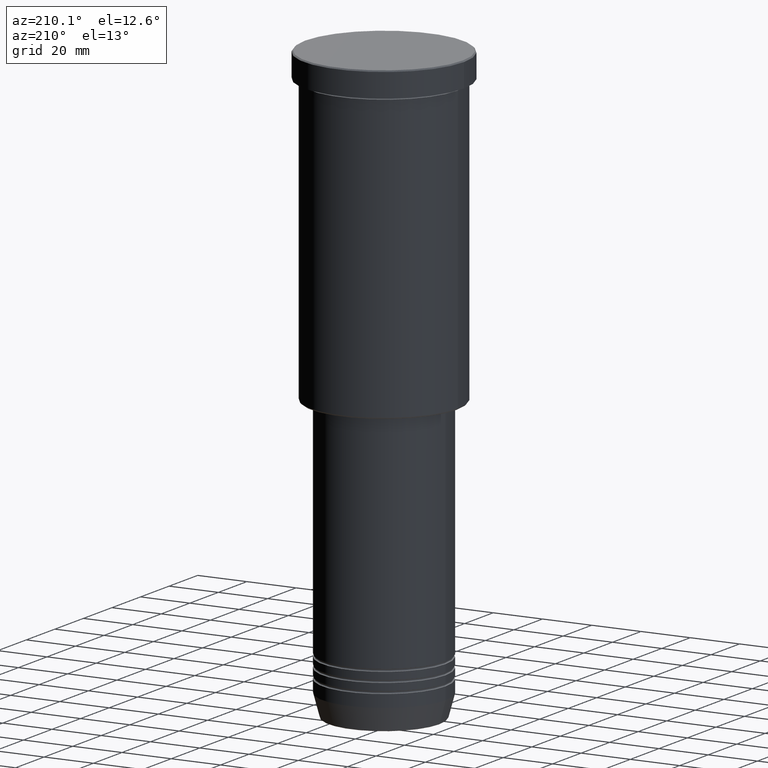
[diagram: clean part render]
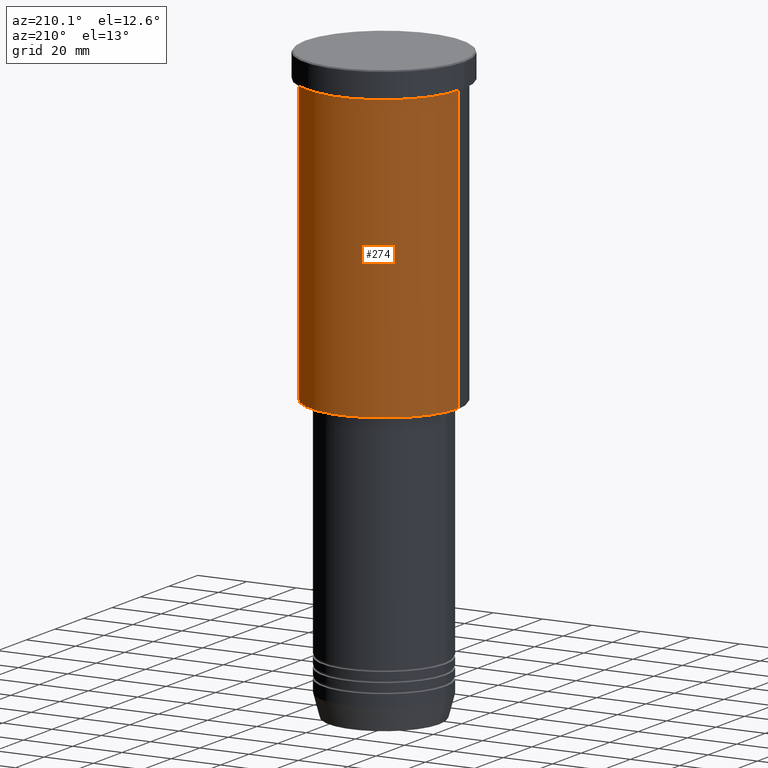
[diagram: same view with one face highlighted and labeled with its STEP entity id]
A machine part, auxiliary view. The second image highlights one B-rep face of the part: STEP entity #274.
In plain terms, the highlighted cylindrical surface (partial cylindrical patch) has radius 30 mm, axis along (-0, -0, 1).
Its self-contained STEP definition (entity closure, byte-faithful):
#2 = VECTOR ( 'NONE', #887, 1000.000000000000000 ) ;
#28 = DIRECTION ( 'NONE',  ( 1.000000000000000000, 0.000000000000000000, 0.000000000000000000 ) ) ;
#40 = CARTESIAN_POINT ( 'NONE',  ( 0.000000000000000000, 0.000000000000000000, -125.4999999999999432 ) ) ;
#55 = AXIS2_PLACEMENT_3D ( 'NONE', #40, #493, #212 ) ;
#95 = CIRCLE ( 'NONE', #55, 30.00000000000000000 ) ;
#96 = VERTEX_POINT ( 'NONE', #977 ) ;
#125 = ORIENTED_EDGE ( 'NONE', *, *, #706, .F. ) ;
#135 = VERTEX_POINT ( 'NONE', #343 ) ;
#150 = ORIENTED_EDGE ( 'NONE', *, *, #1022, .F. ) ;
#161 = AXIS2_PLACEMENT_3D ( 'NONE', #1153, #879, #753 ) ;
#162 = CARTESIAN_POINT ( 'NONE',  ( 30.00000000000000000, 0.000000000000000000, 0.000000000000000000 ) ) ;
#167 = DIRECTION ( 'NONE',  ( -0.000000000000000000, -0.000000000000000000, 1.000000000000000000 ) ) ;
#212 = DIRECTION ( 'NONE',  ( -1.000000000000000000, 0.000000000000000000, 0.000000000000000000 ) ) ;
#274 = ADVANCED_FACE ( 'NONE', ( #294 ), #297, .T. ) ;
#294 = FACE_OUTER_BOUND ( 'NONE', #570, .T. ) ;
#297 = CYLINDRICAL_SURFACE ( 'NONE', #932, 30.00000000000000000 ) ;
#321 = ORIENTED_EDGE ( 'NONE', *, *, #1095, .T. ) ;
#343 = CARTESIAN_POINT ( 'NONE',  ( -30.00000000000000000, 3.673940397442059178E-15, -10.99999999999999289 ) ) ;
#407 = CARTESIAN_POINT ( 'NONE',  ( 30.00000000000000000, 0.000000000000000000, -125.4999999999999432 ) ) ;
#480 = DIRECTION ( 'NONE',  ( -0.000000000000000000, -0.000000000000000000, 1.000000000000000000 ) ) ;
#493 = DIRECTION ( 'NONE',  ( -0.000000000000000000, -0.000000000000000000, 1.000000000000000000 ) ) ;
#518 = CIRCLE ( 'NONE', #161, 30.00000000000000000 ) ;
#562 = CARTESIAN_POINT ( 'NONE',  ( -30.00000000000000000, 3.673940397442059178E-15, -125.4999999999999432 ) ) ;
#570 = EDGE_LOOP ( 'NONE', ( #321, #736, #150, #125 ) ) ;
#575 = CARTESIAN_POINT ( 'NONE',  ( -30.00000000000000000, 3.673940397442059178E-15, 0.000000000000000000 ) ) ;
#583 = VERTEX_POINT ( 'NONE', #407 ) ;
#665 = CARTESIAN_POINT ( 'NONE',  ( 0.000000000000000000, 0.000000000000000000, 0.000000000000000000 ) ) ;
#706 = EDGE_CURVE ( 'NONE', #583, #96, #809, .T. ) ;
#736 = ORIENTED_EDGE ( 'NONE', *, *, #1017, .T. ) ;
#753 = DIRECTION ( 'NONE',  ( 1.000000000000000000, 0.000000000000000000, 0.000000000000000000 ) ) ;
#809 = LINE ( 'NONE', #162, #1132 ) ;
#879 = DIRECTION ( 'NONE',  ( -0.000000000000000000, -0.000000000000000000, 1.000000000000000000 ) ) ;
#887 = DIRECTION ( 'NONE',  ( -0.000000000000000000, -0.000000000000000000, 1.000000000000000000 ) ) ;
#932 = AXIS2_PLACEMENT_3D ( 'NONE', #665, #480, #28 ) ;
#969 = VERTEX_POINT ( 'NONE', #562 ) ;
#977 = CARTESIAN_POINT ( 'NONE',  ( 30.00000000000000000, 0.000000000000000000, -10.99999999999999289 ) ) ;
#1017 = EDGE_CURVE ( 'NONE', #969, #135, #1062, .T. ) ;
#1022 = EDGE_CURVE ( 'NONE', #96, #135, #518, .T. ) ;
#1062 = LINE ( 'NONE', #575, #2 ) ;
#1095 = EDGE_CURVE ( 'NONE', #583, #969, #95, .T. ) ;
#1132 = VECTOR ( 'NONE', #167, 1000.000000000000000 ) ;
#1153 = CARTESIAN_POINT ( 'NONE',  ( 0.000000000000000000, 0.000000000000000000, -10.99999999999999289 ) ) ;